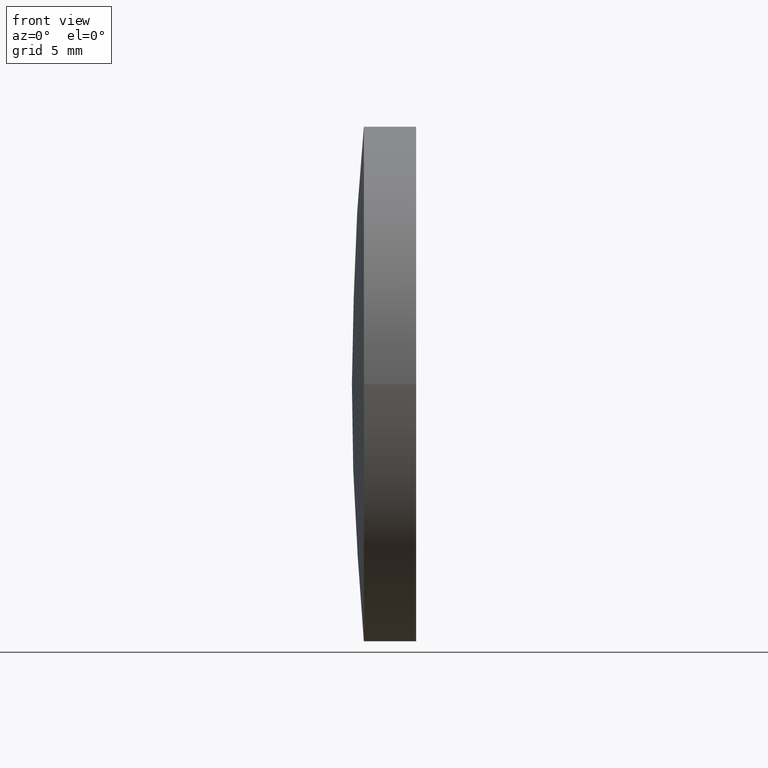
[diagram: clean part render]
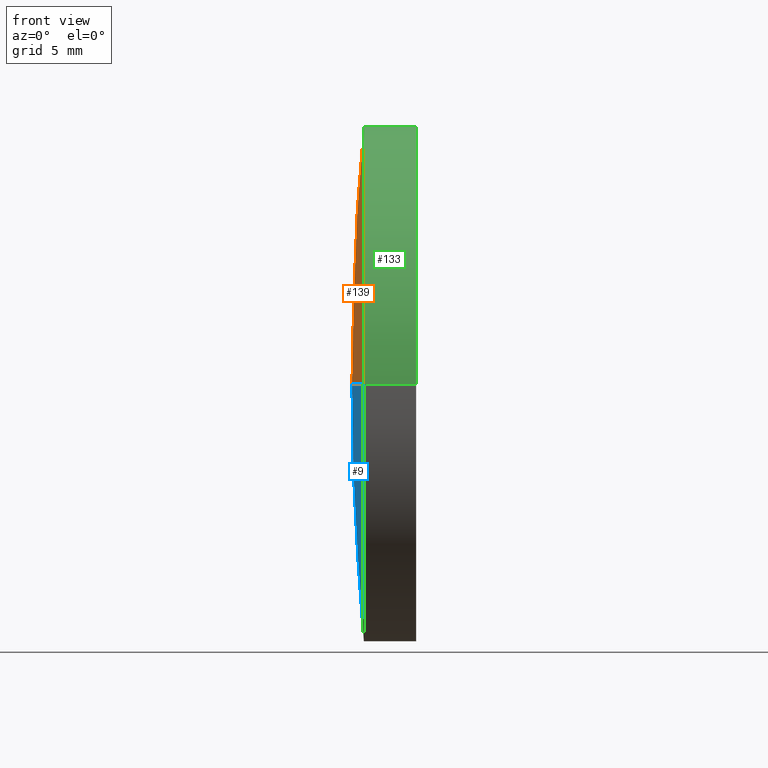
[diagram: same view with three faces highlighted in distinct colors, each labeled with its STEP entity id]
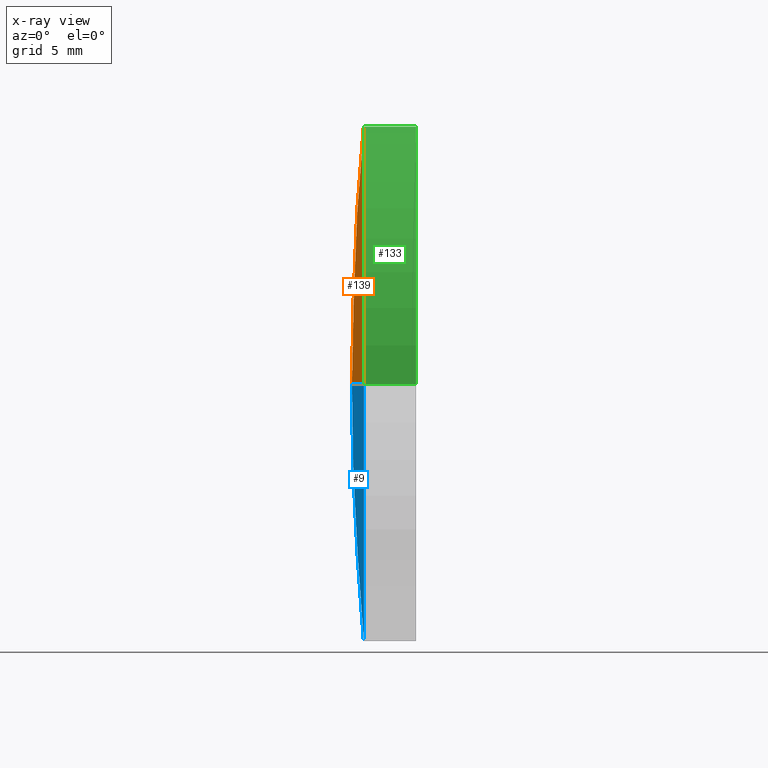
[diagram: x-ray of the same camera — body ghosted, the three highlighted faces saturated]
A machine part, front view with three faces highlighted in distinct colors.
The next image is the same camera in x-ray (body ghosted, the three faces saturated) — at least one of them is partly hidden behind the body in this view.
Their STEP definitions:

[orange] entity #139 — the highlighted spherical surface has radius 135.4 mm.
#13 = EDGE_CURVE ( 'NONE', #49, #176, #78, .T. ) ;
#22 = VERTEX_POINT ( 'NONE', #75 ) ;
#29 = AXIS2_PLACEMENT_3D ( 'NONE', #117, #34, #33 ) ;
#33 = DIRECTION ( 'NONE',  ( 0.0000000000000000000, 1.000000000000000000, 1.224646799147353200E-016 ) ) ;
#34 = DIRECTION ( 'NONE',  ( -8.496118506040342700E-032, 1.224646799147353200E-016, -1.000000000000000000 ) ) ;
#35 = AXIS2_PLACEMENT_3D ( 'NONE', #105, #172, #82 ) ;
#41 = EDGE_LOOP ( 'NONE', ( #74, #59, #44 ) ) ;
#43 = DIRECTION ( 'NONE',  ( 1.000000000000000000, 0.0000000000000000000, 0.0000000000000000000 ) ) ;
#44 = ORIENTED_EDGE ( 'NONE', *, *, #114, .T. ) ;
#47 = CIRCLE ( 'NONE', #143, 135.4000000000000300 ) ;
#49 = VERTEX_POINT ( 'NONE', #61 ) ;
#55 = CARTESIAN_POINT ( 'NONE',  ( 123.1904224595736100, 65.21684047094032600, 0.0000000000000000000 ) ) ;
#59 = ORIENTED_EDGE ( 'NONE', *, *, #131, .T. ) ;
#61 = CARTESIAN_POINT ( 'NONE',  ( 123.1904224595736300, 52.71684047094031200, 0.0000000000000000000 ) ) ;
#74 = ORIENTED_EDGE ( 'NONE', *, *, #13, .F. ) ;
#75 = CARTESIAN_POINT ( 'NONE',  ( 123.1904224595736000, 77.71684047094035500, 1.530808498934193900E-015 ) ) ;
#78 = CIRCLE ( 'NONE', #29, 135.4000000000000300 ) ;
#82 = DIRECTION ( 'NONE',  ( -8.199579206980475300E-016, 1.000000000000000000, 0.0000000000000000000 ) ) ;
#103 = DIRECTION ( 'NONE',  ( 1.110223024625155000E-015, -1.000000000000000000, 0.0000000000000000000 ) ) ;
#105 = CARTESIAN_POINT ( 'NONE',  ( 258.0121936984948000, 65.21684047094031200, 0.0000000000000000000 ) ) ;
#114 = EDGE_CURVE ( 'NONE', #22, #176, #47, .T. ) ;
#117 = CARTESIAN_POINT ( 'NONE',  ( 258.0121936984948000, 65.21684047094031200, 0.0000000000000000000 ) ) ;
#129 = FACE_OUTER_BOUND ( 'NONE', #41, .T. ) ;
#131 = EDGE_CURVE ( 'NONE', #49, #22, #144, .T. ) ;
#137 = DIRECTION ( 'NONE',  ( -0.0000000000000000000, 0.0000000000000000000, 1.000000000000000000 ) ) ;
#138 = CARTESIAN_POINT ( 'NONE',  ( 258.0121936984948000, 65.21684047094031200, 0.0000000000000000000 ) ) ;
#139 = ADVANCED_FACE ( 'NONE', ( #129 ), #166, .T. ) ;
#143 = AXIS2_PLACEMENT_3D ( 'NONE', #138, #137, #43 ) ;
#144 = CIRCLE ( 'NONE', #177, 12.50000000000001800 ) ;
#166 = SPHERICAL_SURFACE ( 'NONE', #35, 135.4000000000000300 ) ;
#172 = DIRECTION ( 'NONE',  ( -0.0000000000000000000, 0.0000000000000000000, -1.000000000000000000 ) ) ;
#176 = VERTEX_POINT ( 'NONE', #185 ) ;
#177 = AXIS2_PLACEMENT_3D ( 'NONE', #55, #184, #103 ) ;
#184 = DIRECTION ( 'NONE',  ( -1.000000000000000000, -6.937607244762875000E-016, -0.0000000000000000000 ) ) ;
#185 = CARTESIAN_POINT ( 'NONE',  ( 122.6121936984947900, 65.21684047094022700, 0.0000000000000000000 ) ) ;

[blue] entity #9 — the highlighted spherical surface has radius 135.4 mm.
#5 = CARTESIAN_POINT ( 'NONE',  ( 258.0121936984948000, 65.21684047094031200, 0.0000000000000000000 ) ) ;
#9 = ADVANCED_FACE ( 'NONE', ( #72 ), #154, .T. ) ;
#13 = EDGE_CURVE ( 'NONE', #49, #176, #78, .T. ) ;
#15 = EDGE_LOOP ( 'NONE', ( #187, #84, #112 ) ) ;
#18 = CARTESIAN_POINT ( 'NONE',  ( 123.1904224595736100, 65.21684047094032600, 0.0000000000000000000 ) ) ;
#22 = VERTEX_POINT ( 'NONE', #75 ) ;
#24 = EDGE_CURVE ( 'NONE', #22, #49, #145, .T. ) ;
#29 = AXIS2_PLACEMENT_3D ( 'NONE', #117, #34, #33 ) ;
#33 = DIRECTION ( 'NONE',  ( 0.0000000000000000000, 1.000000000000000000, 1.224646799147353200E-016 ) ) ;
#34 = DIRECTION ( 'NONE',  ( -8.496118506040342700E-032, 1.224646799147353200E-016, -1.000000000000000000 ) ) ;
#43 = DIRECTION ( 'NONE',  ( 1.000000000000000000, 0.0000000000000000000, 0.0000000000000000000 ) ) ;
#47 = CIRCLE ( 'NONE', #143, 135.4000000000000300 ) ;
#49 = VERTEX_POINT ( 'NONE', #61 ) ;
#58 = AXIS2_PLACEMENT_3D ( 'NONE', #18, #101, #148 ) ;
#61 = CARTESIAN_POINT ( 'NONE',  ( 123.1904224595736300, 52.71684047094031200, 0.0000000000000000000 ) ) ;
#72 = FACE_OUTER_BOUND ( 'NONE', #15, .T. ) ;
#75 = CARTESIAN_POINT ( 'NONE',  ( 123.1904224595736000, 77.71684047094035500, 1.530808498934193900E-015 ) ) ;
#78 = CIRCLE ( 'NONE', #29, 135.4000000000000300 ) ;
#84 = ORIENTED_EDGE ( 'NONE', *, *, #13, .T. ) ;
#87 = DIRECTION ( 'NONE',  ( -0.0000000000000000000, 0.0000000000000000000, -1.000000000000000000 ) ) ;
#98 = DIRECTION ( 'NONE',  ( -8.199579206980475300E-016, 1.000000000000000000, 0.0000000000000000000 ) ) ;
#101 = DIRECTION ( 'NONE',  ( -1.000000000000000000, -6.937607244762875000E-016, -0.0000000000000000000 ) ) ;
#112 = ORIENTED_EDGE ( 'NONE', *, *, #114, .F. ) ;
#114 = EDGE_CURVE ( 'NONE', #22, #176, #47, .T. ) ;
#117 = CARTESIAN_POINT ( 'NONE',  ( 258.0121936984948000, 65.21684047094031200, 0.0000000000000000000 ) ) ;
#137 = DIRECTION ( 'NONE',  ( -0.0000000000000000000, 0.0000000000000000000, 1.000000000000000000 ) ) ;
#138 = CARTESIAN_POINT ( 'NONE',  ( 258.0121936984948000, 65.21684047094031200, 0.0000000000000000000 ) ) ;
#143 = AXIS2_PLACEMENT_3D ( 'NONE', #138, #137, #43 ) ;
#145 = CIRCLE ( 'NONE', #58, 12.50000000000001800 ) ;
#148 = DIRECTION ( 'NONE',  ( 1.110223024625155000E-015, -1.000000000000000000, 0.0000000000000000000 ) ) ;
#154 = SPHERICAL_SURFACE ( 'NONE', #179, 135.4000000000000300 ) ;
#176 = VERTEX_POINT ( 'NONE', #185 ) ;
#179 = AXIS2_PLACEMENT_3D ( 'NONE', #5, #87, #98 ) ;
#185 = CARTESIAN_POINT ( 'NONE',  ( 122.6121936984947900, 65.21684047094022700, 0.0000000000000000000 ) ) ;
#187 = ORIENTED_EDGE ( 'NONE', *, *, #24, .T. ) ;

[green] entity #133 — the highlighted cylindrical surface (partial cylindrical patch) has radius 12.5 mm, axis along (-1, -0, -0).
#2 = FACE_OUTER_BOUND ( 'NONE', #70, .T. ) ;
#4 = DIRECTION ( 'NONE',  ( -1.000000000000000000, -6.937607244762875000E-016, -0.0000000000000000000 ) ) ;
#6 = DIRECTION ( 'NONE',  ( 0.0000000000000000000, -1.000000000000000000, 0.0000000000000000000 ) ) ;
#12 = VERTEX_POINT ( 'NONE', #79 ) ;
#14 = VECTOR ( 'NONE', #40, 1000.000000000000000 ) ;
#16 = CARTESIAN_POINT ( 'NONE',  ( 115.9444912979631800, 52.71684047094035500, 0.0000000000000000000 ) ) ;
#19 = CYLINDRICAL_SURFACE ( 'NONE', #132, 12.49999999999997000 ) ;
#20 = EDGE_CURVE ( 'NONE', #12, #52, #28, .T. ) ;
#22 = VERTEX_POINT ( 'NONE', #75 ) ;
#28 = CIRCLE ( 'NONE', #88, 12.49999999999990800 ) ;
#38 = CARTESIAN_POINT ( 'NONE',  ( 115.9444912979631700, 65.21684047094032600, 0.0000000000000000000 ) ) ;
#40 = DIRECTION ( 'NONE',  ( -1.000000000000000000, -6.937607244762875000E-016, -0.0000000000000000000 ) ) ;
#49 = VERTEX_POINT ( 'NONE', #61 ) ;
#50 = EDGE_CURVE ( 'NONE', #12, #49, #183, .T. ) ;
#51 = CARTESIAN_POINT ( 'NONE',  ( 115.9444912979631500, 77.71684047094029800, 1.530808498934187800E-015 ) ) ;
#52 = VERTEX_POINT ( 'NONE', #76 ) ;
#55 = CARTESIAN_POINT ( 'NONE',  ( 123.1904224595736100, 65.21684047094032600, 0.0000000000000000000 ) ) ;
#57 = ORIENTED_EDGE ( 'NONE', *, *, #50, .F. ) ;
#61 = CARTESIAN_POINT ( 'NONE',  ( 123.1904224595736300, 52.71684047094031200, 0.0000000000000000000 ) ) ;
#63 = LINE ( 'NONE', #51, #14 ) ;
#70 = EDGE_LOOP ( 'NONE', ( #109, #73, #171, #57 ) ) ;
#73 = ORIENTED_EDGE ( 'NONE', *, *, #113, .T. ) ;
#75 = CARTESIAN_POINT ( 'NONE',  ( 123.1904224595736000, 77.71684047094035500, 1.530808498934193900E-015 ) ) ;
#76 = CARTESIAN_POINT ( 'NONE',  ( 125.7226627224782000, 77.71684047094014100, 0.0000000000000000000 ) ) ;
#79 = CARTESIAN_POINT ( 'NONE',  ( 125.7226627224782000, 52.71684047094036900, -1.530808498934169000E-015 ) ) ;
#88 = AXIS2_PLACEMENT_3D ( 'NONE', #147, #4, #6 ) ;
#89 = DIRECTION ( 'NONE',  ( -1.000000000000000000, -6.937607244762875000E-016, -0.0000000000000000000 ) ) ;
#103 = DIRECTION ( 'NONE',  ( 1.110223024625155000E-015, -1.000000000000000000, 0.0000000000000000000 ) ) ;
#109 = ORIENTED_EDGE ( 'NONE', *, *, #20, .T. ) ;
#113 = EDGE_CURVE ( 'NONE', #52, #22, #63, .T. ) ;
#131 = EDGE_CURVE ( 'NONE', #49, #22, #144, .T. ) ;
#132 = AXIS2_PLACEMENT_3D ( 'NONE', #38, #89, #151 ) ;
#133 = ADVANCED_FACE ( 'NONE', ( #2 ), #19, .T. ) ;
#136 = VECTOR ( 'NONE', #180, 1000.000000000000000 ) ;
#144 = CIRCLE ( 'NONE', #177, 12.50000000000001800 ) ;
#147 = CARTESIAN_POINT ( 'NONE',  ( 125.7226627224781800, 65.21684047094032600, 0.0000000000000000000 ) ) ;
#151 = DIRECTION ( 'NONE',  ( 1.110223024625159300E-015, -1.000000000000000000, 0.0000000000000000000 ) ) ;
#171 = ORIENTED_EDGE ( 'NONE', *, *, #131, .F. ) ;
#177 = AXIS2_PLACEMENT_3D ( 'NONE', #55, #184, #103 ) ;
#180 = DIRECTION ( 'NONE',  ( -1.000000000000000000, -6.937607244762875000E-016, -0.0000000000000000000 ) ) ;
#183 = LINE ( 'NONE', #16, #136 ) ;
#184 = DIRECTION ( 'NONE',  ( -1.000000000000000000, -6.937607244762875000E-016, -0.0000000000000000000 ) ) ;